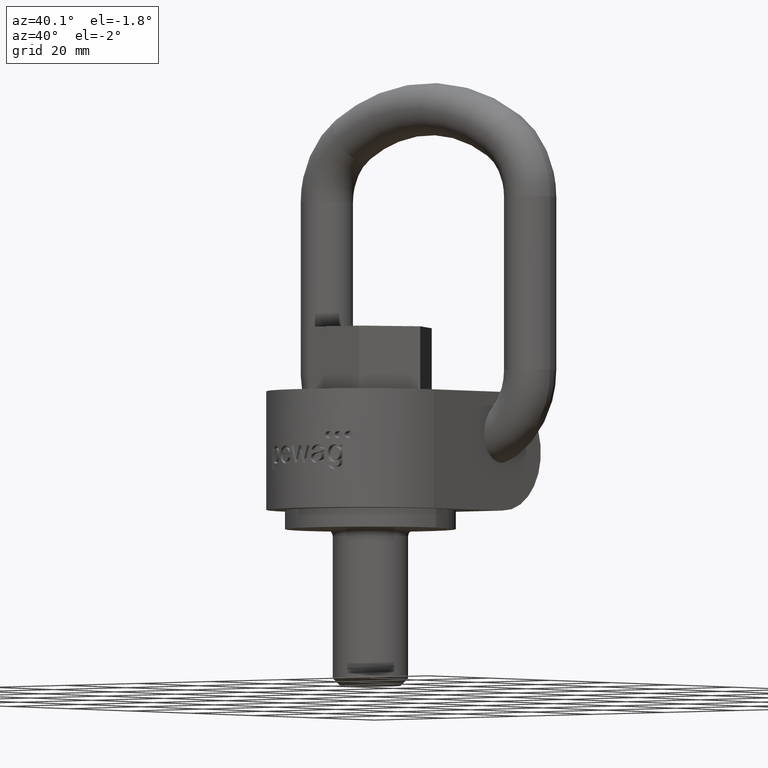
[diagram: clean part render]
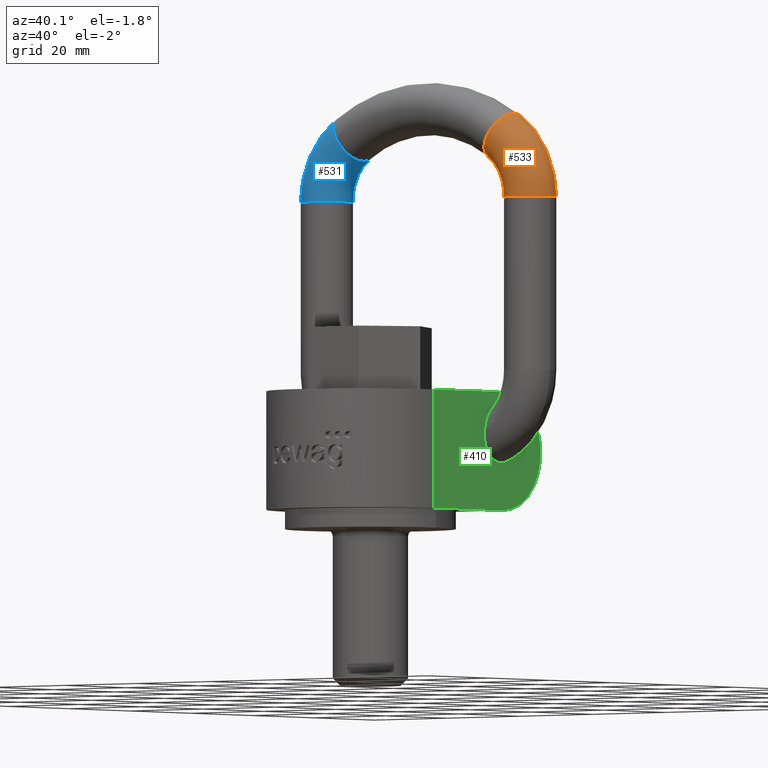
[diagram: same view with three faces highlighted in distinct colors, each labeled with its STEP entity id]
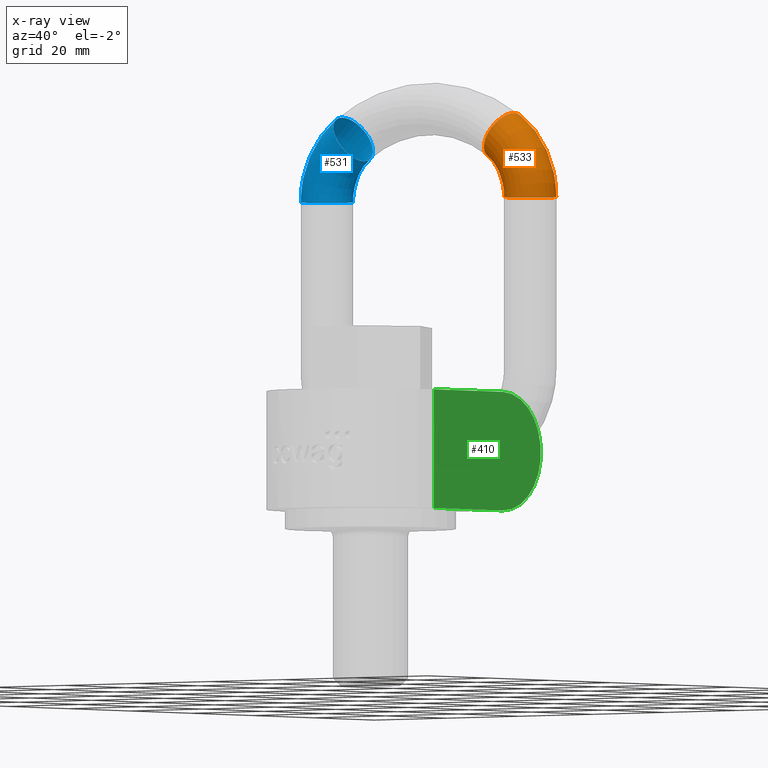
[diagram: x-ray of the same camera — body ghosted, the three highlighted faces saturated]
A machine part, auxiliary view with three faces highlighted in distinct colors.
The next image is the same camera in x-ray (body ghosted, the three faces saturated) — at least one of them is partly hidden behind the body in this view.
Their STEP definitions:

[orange] entity #533 — the highlighted toroidal blend (fillet) surface has major radius 15.5 mm and minor (blend) radius 5.5 mm.
#243=TOROIDAL_SURFACE('',#2548,15.5,5.5);
#533=ADVANCED_FACE('',(#621,#622),#243,.T.);
#621=FACE_BOUND('',#783,.T.);
#622=FACE_BOUND('',#784,.T.);
#783=EDGE_LOOP('',(#1724));
#784=EDGE_LOOP('',(#1725));
#1118=CIRCLE('',#2545,5.5);
#1119=CIRCLE('',#2547,5.5);
#1724=ORIENTED_EDGE('',*,*,#2240,.F.);
#1725=ORIENTED_EDGE('',*,*,#2241,.T.);
#1936=VERTEX_POINT('',#5196);
#1937=VERTEX_POINT('',#5199);
#2240=EDGE_CURVE('',#1936,#1936,#1118,.T.);
#2241=EDGE_CURVE('',#1937,#1937,#1119,.T.);
#2545=AXIS2_PLACEMENT_3D('',#5195,#2979,#2980);
#2547=AXIS2_PLACEMENT_3D('',#5198,#2983,#2984);
#2548=AXIS2_PLACEMENT_3D('',#5200,#2985,#2986);
#2979=DIRECTION('',(-0.846797818814145,0.,0.531914893617021));
#2980=DIRECTION('',(0.531914893617021,0.,0.846797818814146));
#2983=DIRECTION('',(6.77576192227313E-16,0.,1.));
#2984=DIRECTION('',(1.,0.,0.));
#2985=DIRECTION('',(0.,1.,0.));
#2986=DIRECTION('',(0.,0.,1.));
#5195=CARTESIAN_POINT('',(20.7446808510638,19.,79.0251149337516));
#5196=CARTESIAN_POINT('',(23.6702127659575,19.,83.6825029372294));
#5198=CARTESIAN_POINT('',(28.,19.,65.8997487421324));
#5199=CARTESIAN_POINT('',(33.5,19.,65.8997487421324));
#5200=CARTESIAN_POINT('',(12.5,19.,65.8997487421324));

[blue] entity #531 — the highlighted toroidal blend (fillet) surface has major radius 15.5 mm and minor (blend) radius 5.5 mm.
#241=TOROIDAL_SURFACE('',#2544,15.5,5.5);
#531=ADVANCED_FACE('',(#617,#618),#241,.T.);
#617=FACE_BOUND('',#779,.T.);
#618=FACE_BOUND('',#780,.T.);
#779=EDGE_LOOP('',(#1720));
#780=EDGE_LOOP('',(#1721));
#1116=CIRCLE('',#2541,5.5);
#1117=CIRCLE('',#2543,5.5);
#1720=ORIENTED_EDGE('',*,*,#2239,.T.);
#1721=ORIENTED_EDGE('',*,*,#2238,.F.);
#1934=VERTEX_POINT('',#5190);
#1935=VERTEX_POINT('',#5193);
#2238=EDGE_CURVE('',#1934,#1934,#1116,.T.);
#2239=EDGE_CURVE('',#1935,#1935,#1117,.T.);
#2541=AXIS2_PLACEMENT_3D('',#5189,#2971,#2972);
#2543=AXIS2_PLACEMENT_3D('',#5192,#2975,#2976);
#2544=AXIS2_PLACEMENT_3D('',#5194,#2977,#2978);
#2971=DIRECTION('',(3.33066907387547E-16,0.,-1.));
#2972=DIRECTION('',(-1.,0.,0.));
#2975=DIRECTION('',(-0.846797818814144,0.,-0.531914893617022));
#2976=DIRECTION('',(-0.531914893617021,0.,0.846797818814146));
#2977=DIRECTION('',(0.,-1.,0.));
#2978=DIRECTION('',(0.,0.,-1.));
#5189=CARTESIAN_POINT('',(-28.,19.,65.8997487421324));
#5190=CARTESIAN_POINT('',(-33.5,19.,65.8997487421324));
#5192=CARTESIAN_POINT('',(-20.7446808510639,19.,79.0251149337516));
#5193=CARTESIAN_POINT('',(-23.6702127659575,19.,83.6825029372294));
#5194=CARTESIAN_POINT('',(-12.5,19.,65.8997487421324));

[green] entity #410 — the highlighted planar face has unit normal (1, 0, 0).
#245=FACE_OUTER_BOUND('',#639,.T.);
#349=PLANE('',#2455);
#410=ADVANCED_FACE('',(#245),#349,.T.);
#639=EDGE_LOOP('',(#1207,#1208,#1209,#1210));
#791=LINE('',#3673,#917);
#793=LINE('',#3797,#919);
#796=LINE('',#3805,#922);
#917=VECTOR('',#2614,1.);
#919=VECTOR('',#2620,1.);
#922=VECTOR('',#2627,1.);
#1104=CIRCLE('',#2453,12.505);
#1207=ORIENTED_EDGE('',*,*,#2015,.T.);
#1208=ORIENTED_EDGE('',*,*,#2006,.T.);
#1209=ORIENTED_EDGE('',*,*,#2011,.T.);
#1210=ORIENTED_EDGE('',*,*,#2020,.T.);
#1795=VERTEX_POINT('',#3671);
#1797=VERTEX_POINT('',#3674);
#1801=VERTEX_POINT('',#3798);
#1804=VERTEX_POINT('',#3806);
#2006=EDGE_CURVE('',#1797,#1795,#791,.T.);
#2011=EDGE_CURVE('',#1795,#1801,#793,.T.);
#2015=EDGE_CURVE('',#1804,#1797,#796,.T.);
#2020=EDGE_CURVE('',#1801,#1804,#1104,.T.);
#2453=AXIS2_PLACEMENT_3D('',#3814,#2636,#2637);
#2455=AXIS2_PLACEMENT_3D('',#3816,#2640,#2641);
#2614=DIRECTION('',(0.,0.,-1.));
#2620=DIRECTION('',(0.,1.,1.14897503733909E-16));
#2627=DIRECTION('',(0.,-1.,3.26574604254958E-16));
#2636=DIRECTION('',(1.,0.,0.));
#2637=DIRECTION('',(0.,1.,0.));
#2640=DIRECTION('',(1.,0.,0.));
#2641=DIRECTION('',(0.,0.,-1.));
#3671=CARTESIAN_POINT('',(20.,-3.00000000000001,9.23098548293064E-16));
#3673=CARTESIAN_POINT('',(20.,-3.00000000000001,0.));
#3674=CARTESIAN_POINT('',(20.,-3.00000000000001,25.01));
#3797=CARTESIAN_POINT('',(20.,-23.,-1.37485152638513E-15));
#3798=CARTESIAN_POINT('',(20.,19.495,3.50771789478736E-15));
#3805=CARTESIAN_POINT('',(20.,19.495,25.01));
#3806=CARTESIAN_POINT('',(20.,19.495,25.01));
#3814=CARTESIAN_POINT('',(20.,19.495,12.505));
#3816=CARTESIAN_POINT('',(20.,19.495,12.505));